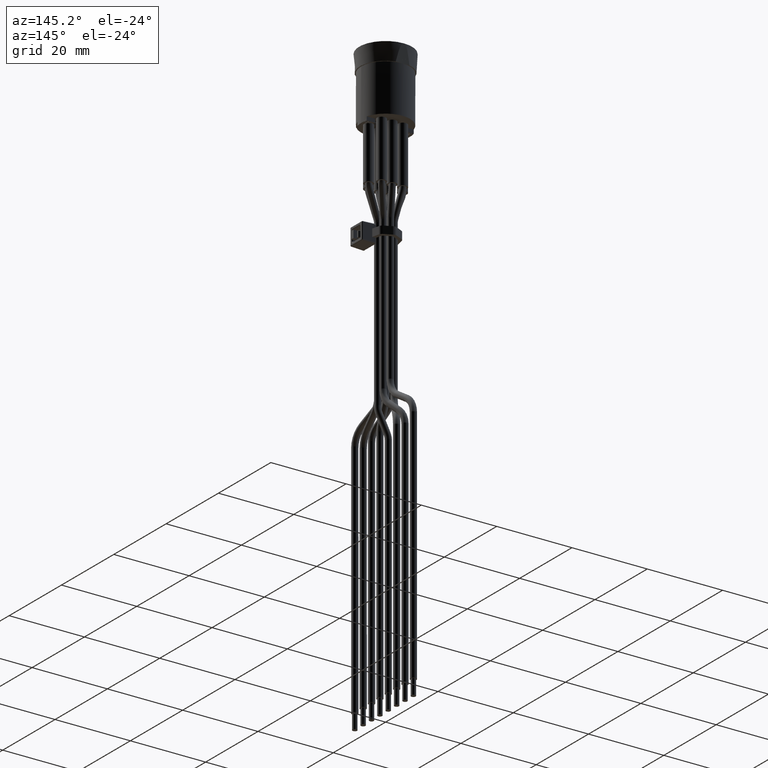
[diagram: clean part render]
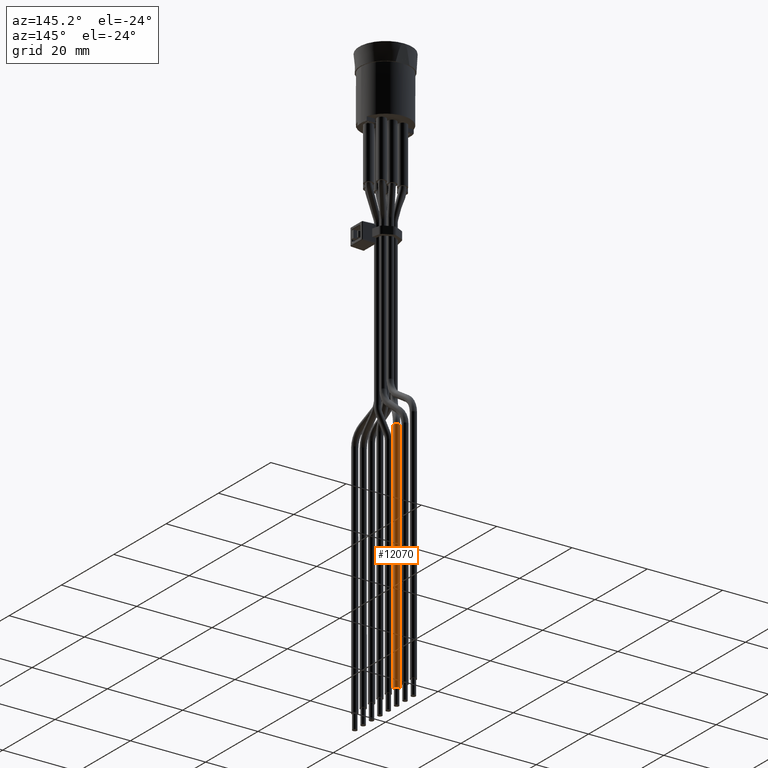
[diagram: same view with one face highlighted and labeled with its STEP entity id]
A machine part, auxiliary view. The second image highlights one B-rep face of the part: STEP entity #12070.
In plain terms, the highlighted cylindrical surface (bore or boss wall) has radius 0.8 mm, axis along (-0, 0, -1).
Its self-contained STEP definition (entity closure, byte-faithful):
#972=FACE_OUTER_BOUND('',#1653,.T.);
#1653=EDGE_LOOP('',(#8683,#8684,#8685,#8686,#8687));
#2358=CIRCLE('',#12847,0.800000000000001);
#2376=CIRCLE('',#12871,0.800000000000001);
#2377=CIRCLE('',#12872,0.800000000000001);
#2985=LINE('',#18436,#4135);
#4135=VECTOR('',#14467,0.800000000000001);
#5315=VERTEX_POINT('',#18383);
#5333=VERTEX_POINT('',#18430);
#5334=VERTEX_POINT('',#18431);
#6603=EDGE_CURVE('',#5315,#5315,#2358,.T.);
#6626=EDGE_CURVE('',#5333,#5334,#2376,.T.);
#6627=EDGE_CURVE('',#5334,#5333,#2377,.T.);
#6629=EDGE_CURVE('',#5315,#5333,#2985,.T.);
#8683=ORIENTED_EDGE('',*,*,#6603,.F.);
#8684=ORIENTED_EDGE('',*,*,#6629,.T.);
#8685=ORIENTED_EDGE('',*,*,#6626,.T.);
#8686=ORIENTED_EDGE('',*,*,#6627,.T.);
#8687=ORIENTED_EDGE('',*,*,#6629,.F.);
#11854=CYLINDRICAL_SURFACE('',#12874,0.800000000000001);
#12070=ADVANCED_FACE('',(#972),#11854,.T.);
#12847=AXIS2_PLACEMENT_3D('',#18384,#14406,#14407);
#12871=AXIS2_PLACEMENT_3D('',#18432,#14459,#14460);
#12872=AXIS2_PLACEMENT_3D('',#18433,#14461,#14462);
#12874=AXIS2_PLACEMENT_3D('',#18435,#14465,#14466);
#14406=DIRECTION('center_axis',(-1.6375789613221E-15,5.27400676869216E-15,
-1.));
#14407=DIRECTION('ref_axis',(-5.23524449766333E-15,1.,4.99645101253588E-15));
#14459=DIRECTION('center_axis',(-1.6375789613221E-15,5.27400676869216E-15,
-1.));
#14460=DIRECTION('ref_axis',(-5.23524449766333E-15,1.,4.99645101253588E-15));
#14461=DIRECTION('center_axis',(-1.6375789613221E-15,5.27400676869216E-15,
-1.));
#14462=DIRECTION('ref_axis',(-5.23524449766333E-15,1.,4.99645101253588E-15));
#14465=DIRECTION('center_axis',(-1.94289029309401E-15,5.00755324278212E-15,
-1.));
#14466=DIRECTION('ref_axis',(-5.23524449766333E-15,1.,5.00755324278213E-15));
#14467=DIRECTION('',(1.94289029309401E-15,-5.00755324278212E-15,1.));
#18383=CARTESIAN_POINT('',(-0.0214932559556677,3.40000000000063,-128.1));
#18384=CARTESIAN_POINT('Origin',(-0.0214932559556685,4.20000000000064,-128.1));
#18430=CARTESIAN_POINT('',(-0.0214932559555453,3.40000000000031,-65.1292569165037));
#18431=CARTESIAN_POINT('',(-0.361678591176906,3.47593236662597,-65.1292569165037));
#18432=CARTESIAN_POINT('Origin',(-0.0214932559555461,4.20000000000032,-65.1292569165037));
#18433=CARTESIAN_POINT('Origin',(-0.0214932559555461,4.20000000000032,-65.1292569165037));
#18435=CARTESIAN_POINT('Origin',(-0.0214932559555461,4.20000000000032,-65.1292569165037));
#18436=CARTESIAN_POINT('',(-0.021493255955542,3.40000000000032,-65.1292569165037));